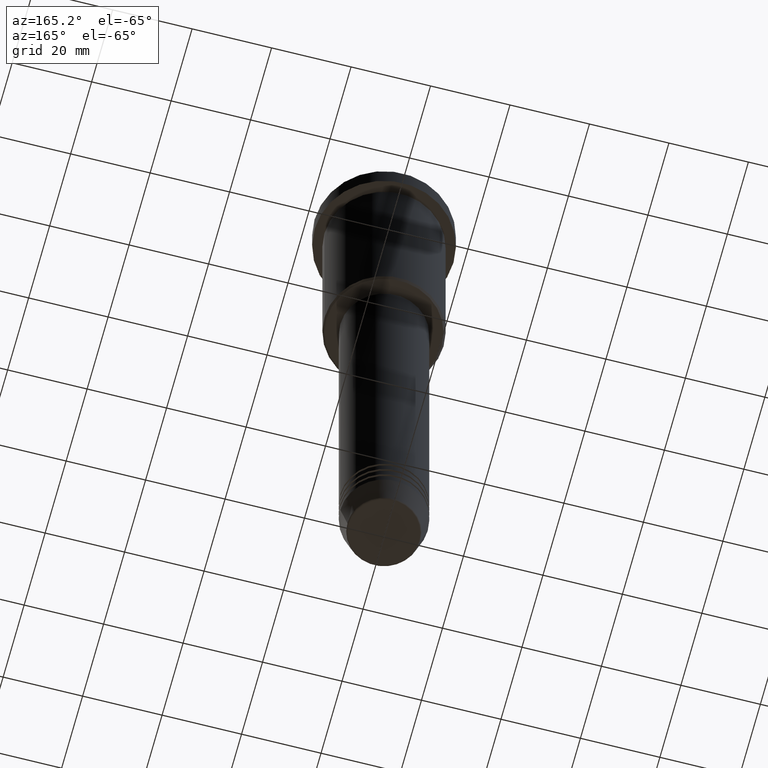
[diagram: clean part render]
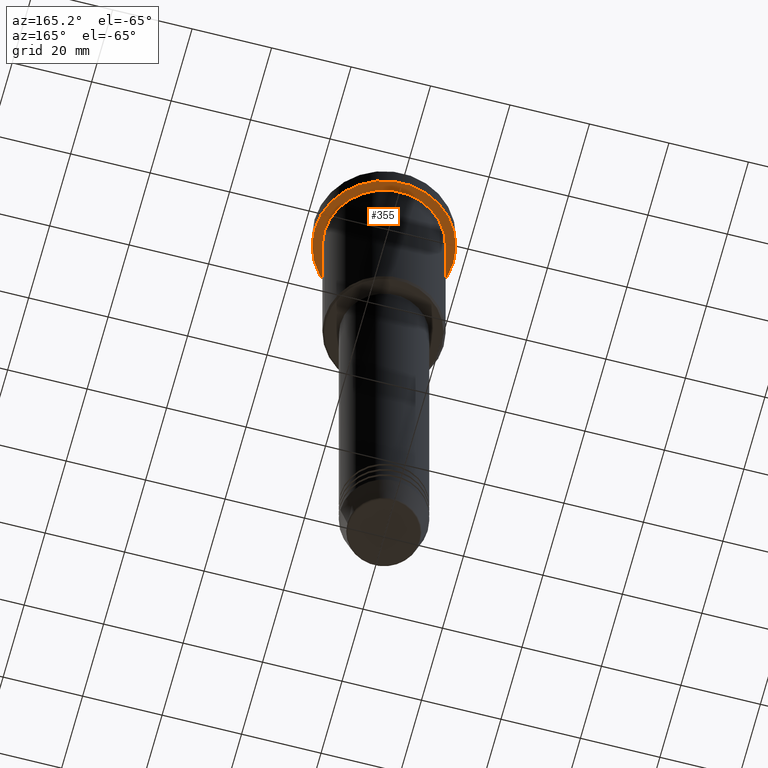
[diagram: same view with one face highlighted and labeled with its STEP entity id]
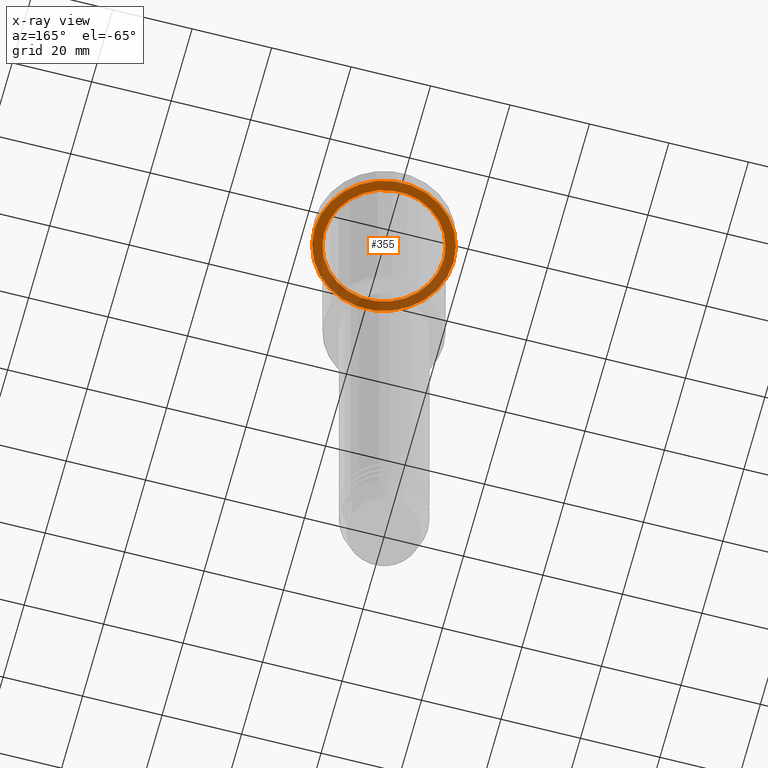
[diagram: x-ray of the same camera — body ghosted, the highlighted face saturated]
A machine part, auxiliary view. The second image highlights one B-rep face of the part: STEP entity #355.
The next image is the same camera in x-ray: the body ghosted, the highlighted face saturated — about 37% of this face is hidden behind the body in this view.
In plain terms, the highlighted planar face has unit normal (0, 0, -1).
Its self-contained STEP definition (entity closure, byte-faithful):
#8 = DIRECTION ( 'NONE',  ( -1.000000000000000000, 0.000000000000000000, 0.000000000000000000 ) ) ;
#12 = AXIS2_PLACEMENT_3D ( 'NONE', #865, #316, #884 ) ;
#79 = ORIENTED_EDGE ( 'NONE', *, *, #639, .F. ) ;
#85 = CARTESIAN_POINT ( 'NONE',  ( 17.50000000000000000, 0.000000000000000000, -5.999999999999995559 ) ) ;
#103 = DIRECTION ( 'NONE',  ( 1.000000000000000000, 0.000000000000000000, 0.000000000000000000 ) ) ;
#111 = AXIS2_PLACEMENT_3D ( 'NONE', #218, #1023, #8 ) ;
#132 = CIRCLE ( 'NONE', #812, 15.00000000000000000 ) ;
#141 = VERTEX_POINT ( 'NONE', #85 ) ;
#184 = EDGE_CURVE ( 'NONE', #768, #1127, #510, .T. ) ;
#218 = CARTESIAN_POINT ( 'NONE',  ( 0.000000000000000000, 0.000000000000000000, -5.999999999999995559 ) ) ;
#247 = AXIS2_PLACEMENT_3D ( 'NONE', #1138, #496, #674 ) ;
#316 = DIRECTION ( 'NONE',  ( -0.000000000000000000, -0.000000000000000000, 1.000000000000000000 ) ) ;
#350 = CARTESIAN_POINT ( 'NONE',  ( 0.000000000000000000, 0.000000000000000000, -5.999999999999995559 ) ) ;
#355 = ADVANCED_FACE ( 'NONE', ( #1142, #1129 ), #961, .T. ) ;
#358 = CARTESIAN_POINT ( 'NONE',  ( -15.00000000000000000, 0.000000000000000000, -5.999999999999994671 ) ) ;
#375 = CARTESIAN_POINT ( 'NONE',  ( -17.50000000000000000, 2.143131898507868248E-15, -5.999999999999995559 ) ) ;
#406 = ORIENTED_EDGE ( 'NONE', *, *, #759, .T. ) ;
#411 = EDGE_LOOP ( 'NONE', ( #79, #792 ) ) ;
#424 = DIRECTION ( 'NONE',  ( -0.000000000000000000, -0.000000000000000000, 1.000000000000000000 ) ) ;
#484 = EDGE_CURVE ( 'NONE', #851, #141, #749, .T. ) ;
#491 = EDGE_LOOP ( 'NONE', ( #777, #406 ) ) ;
#496 = DIRECTION ( 'NONE',  ( 0.000000000000000000, 0.000000000000000000, -1.000000000000000000 ) ) ;
#510 = CIRCLE ( 'NONE', #111, 15.00000000000000000 ) ;
#560 = CARTESIAN_POINT ( 'NONE',  ( 0.000000000000000000, 0.000000000000000000, -5.999999999999995559 ) ) ;
#639 = EDGE_CURVE ( 'NONE', #141, #851, #1135, .T. ) ;
#674 = DIRECTION ( 'NONE',  ( -1.000000000000000000, 0.000000000000000000, -0.000000000000000000 ) ) ;
#731 = AXIS2_PLACEMENT_3D ( 'NONE', #560, #927, #103 ) ;
#749 = CIRCLE ( 'NONE', #731, 17.50000000000000000 ) ;
#759 = EDGE_CURVE ( 'NONE', #1127, #768, #132, .T. ) ;
#768 = VERTEX_POINT ( 'NONE', #358 ) ;
#777 = ORIENTED_EDGE ( 'NONE', *, *, #184, .T. ) ;
#792 = ORIENTED_EDGE ( 'NONE', *, *, #484, .F. ) ;
#812 = AXIS2_PLACEMENT_3D ( 'NONE', #350, #424, #1074 ) ;
#851 = VERTEX_POINT ( 'NONE', #375 ) ;
#865 = CARTESIAN_POINT ( 'NONE',  ( 0.000000000000000000, 0.000000000000000000, -5.999999999999995559 ) ) ;
#884 = DIRECTION ( 'NONE',  ( 1.000000000000000000, 0.000000000000000000, 0.000000000000000000 ) ) ;
#927 = DIRECTION ( 'NONE',  ( -0.000000000000000000, -0.000000000000000000, 1.000000000000000000 ) ) ;
#961 = PLANE ( 'NONE',  #247 ) ;
#1012 = CARTESIAN_POINT ( 'NONE',  ( 15.00000000000000000, 1.836970198721029589E-15, -5.999999999999994671 ) ) ;
#1023 = DIRECTION ( 'NONE',  ( -0.000000000000000000, -0.000000000000000000, 1.000000000000000000 ) ) ;
#1074 = DIRECTION ( 'NONE',  ( -1.000000000000000000, 0.000000000000000000, 0.000000000000000000 ) ) ;
#1127 = VERTEX_POINT ( 'NONE', #1012 ) ;
#1129 = FACE_OUTER_BOUND ( 'NONE', #411, .T. ) ;
#1135 = CIRCLE ( 'NONE', #12, 17.50000000000000000 ) ;
#1138 = CARTESIAN_POINT ( 'NONE',  ( 0.000000000000000000, 17.50000000000000000, -5.999999999999995559 ) ) ;
#1142 = FACE_BOUND ( 'NONE', #491, .T. ) ;